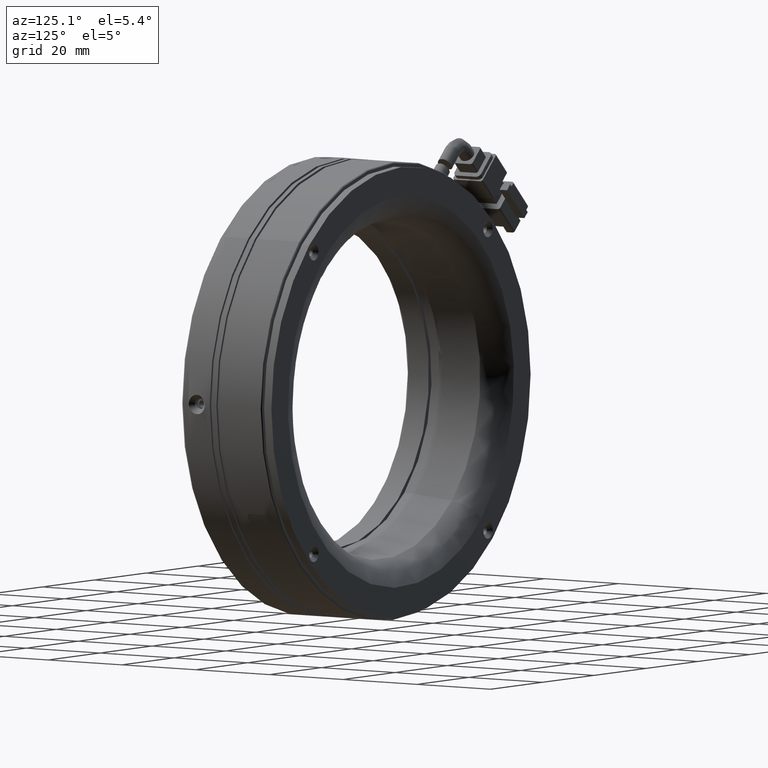
[diagram: clean part render]
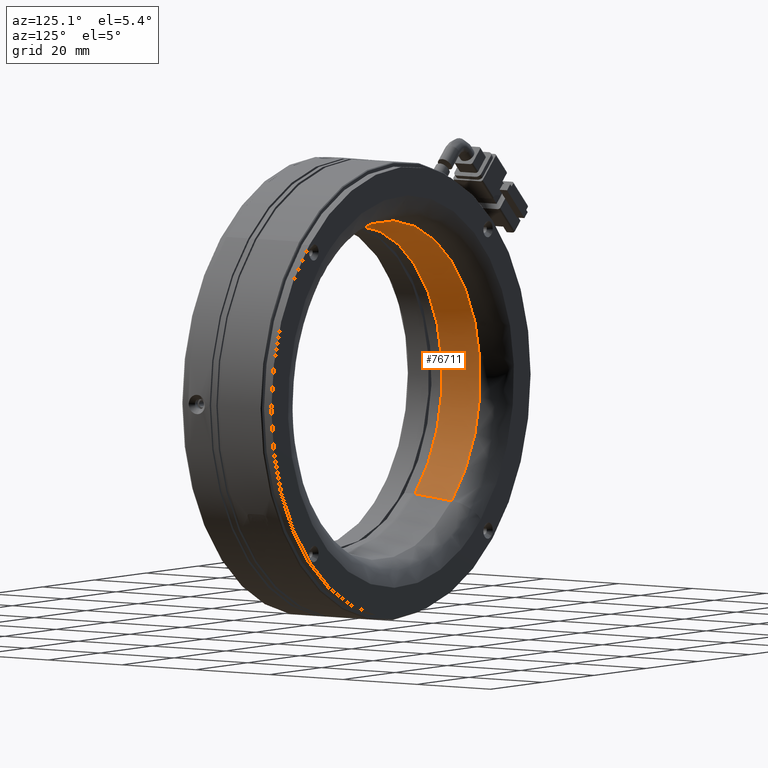
[diagram: same view with one face highlighted and labeled with its STEP entity id]
A machine part, auxiliary view. The second image highlights one B-rep face of the part: STEP entity #76711.
In plain terms, the highlighted conical surface has half-angle 10 deg.
Its self-contained STEP definition (entity closure, byte-faithful):
#852 = DIRECTION ( 'NONE',  ( -0.1227878039689699100, 0.9848077530122089100, -0.1227878039689695900 ) ) ;
#2097 = LINE ( 'NONE', #37138, #57791 ) ;
#6757 = DIRECTION ( 'NONE',  ( -5.593399160027876600E-020, 1.000000000000000000, -5.741257191681600800E-020 ) ) ;
#11120 = LINE ( 'NONE', #75935, #49844 ) ;
#14939 = CIRCLE ( 'NONE', #84269, 37.68601622387225100 ) ;
#15869 = VERTEX_POINT ( 'NONE', #79760 ) ;
#18954 = CARTESIAN_POINT ( 'NONE',  ( -25.49881428618152400, 11.23180113905660900, -25.49881428618178300 ) ) ;
#19302 = CARTESIAN_POINT ( 'NONE',  ( 3.317160594367525600E-013, 20.44903624052007300, 2.765983579064349600E-015 ) ) ;
#22705 = VERTEX_POINT ( 'NONE', #62690 ) ;
#23064 = CIRCLE ( 'NONE', #52872, 36.06076898795116400 ) ;
#24531 = AXIS2_PLACEMENT_3D ( 'NONE', #76484, #61846, #69452 ) ;
#26631 = DIRECTION ( 'NONE',  ( -0.7071067811865485700, 0.0000000000000000000, -0.7071067811865465700 ) ) ;
#28991 = ORIENTED_EDGE ( 'NONE', *, *, #74896, .F. ) ;
#37138 = CARTESIAN_POINT ( 'NONE',  ( -26.64803762780602300, 20.44903624052007600, -26.64803762780628200 ) ) ;
#42499 = EDGE_LOOP ( 'NONE', ( #28991, #59034, #73475, #80939 ) ) ;
#46131 = EDGE_CURVE ( 'NONE', #59625, #22705, #11120, .T. ) ;
#49844 = VECTOR ( 'NONE', #83229, 999.9999999999998900 ) ;
#50286 = CARTESIAN_POINT ( 'NONE',  ( 3.317165749935032900E-013, 11.23180113905660900, 2.766512764237486600E-015 ) ) ;
#51218 = EDGE_CURVE ( 'NONE', #22705, #15869, #14939, .T. ) ;
#52872 = AXIS2_PLACEMENT_3D ( 'NONE', #50286, #6757, #57545 ) ;
#55262 = EDGE_CURVE ( 'NONE', #73502, #15869, #2097, .T. ) ;
#57545 = DIRECTION ( 'NONE',  ( 0.7071067811865485700, 1.443166791498336800E-016, 0.7071067811865464600 ) ) ;
#57791 = VECTOR ( 'NONE', #852, 999.9999999999998900 ) ;
#59034 = ORIENTED_EDGE ( 'NONE', *, *, #55262, .T. ) ;
#59625 = VERTEX_POINT ( 'NONE', #91722 ) ;
#61846 = DIRECTION ( 'NONE',  ( -5.593399160027876600E-020, 1.000000000000000000, -5.741257191681600800E-020 ) ) ;
#62690 = CARTESIAN_POINT ( 'NONE',  ( 26.64803762780669100, 20.44903624052007300, 26.64803762780628200 ) ) ;
#63132 = CONICAL_SURFACE ( 'NONE', #24531, 37.68601622387225100, 0.1745329251994285300 ) ;
#69452 = DIRECTION ( 'NONE',  ( 0.7071067811865485700, 0.0000000000000000000, 0.7071067811865465700 ) ) ;
#70112 = DIRECTION ( 'NONE',  ( 5.593399160027876600E-020, -1.000000000000000000, 5.741257191681600800E-020 ) ) ;
#73475 = ORIENTED_EDGE ( 'NONE', *, *, #51218, .F. ) ;
#73502 = VERTEX_POINT ( 'NONE', #18954 ) ;
#74896 = EDGE_CURVE ( 'NONE', #73502, #59625, #23064, .T. ) ;
#75935 = CARTESIAN_POINT ( 'NONE',  ( 26.64803762780669100, 20.44903624052007600, 26.64803762780628200 ) ) ;
#76484 = CARTESIAN_POINT ( 'NONE',  ( 3.317160594367525600E-013, 20.44903624052007600, 2.765983579064349600E-015 ) ) ;
#76711 = ADVANCED_FACE ( 'NONE', ( #91566 ), #63132, .F. ) ;
#79760 = CARTESIAN_POINT ( 'NONE',  ( -26.64803762780602300, 20.44903624052007300, -26.64803762780628200 ) ) ;
#80939 = ORIENTED_EDGE ( 'NONE', *, *, #46131, .F. ) ;
#83229 = DIRECTION ( 'NONE',  ( 0.1227878039689699300, 0.9848077530122089100, 0.1227878039689695600 ) ) ;
#84269 = AXIS2_PLACEMENT_3D ( 'NONE', #19302, #70112, #26631 ) ;
#91566 = FACE_OUTER_BOUND ( 'NONE', #42499, .T. ) ;
#91722 = CARTESIAN_POINT ( 'NONE',  ( 25.49881428618219600, 11.23180113905660900, 25.49881428618178700 ) ) ;